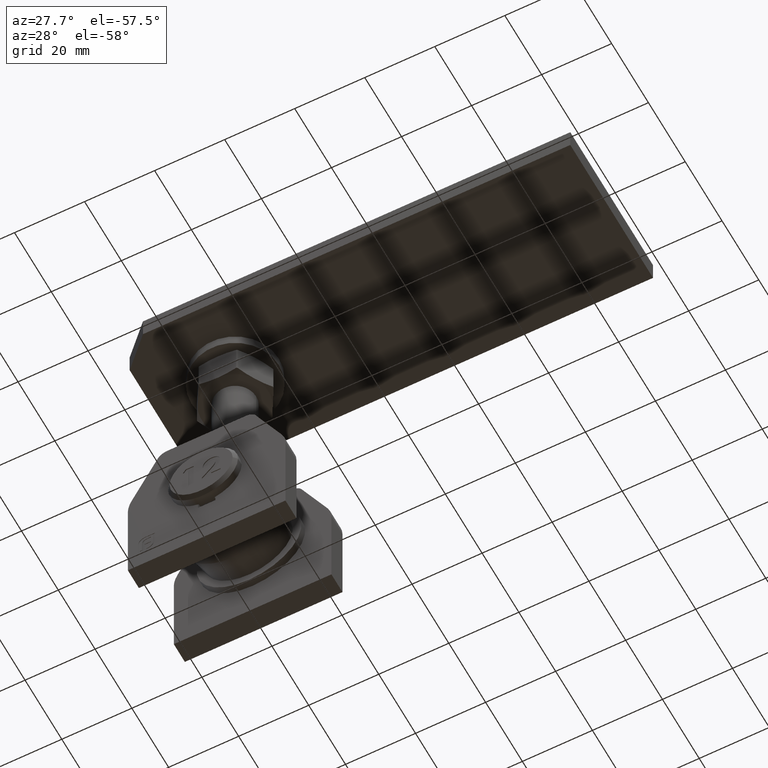
[diagram: clean part render]
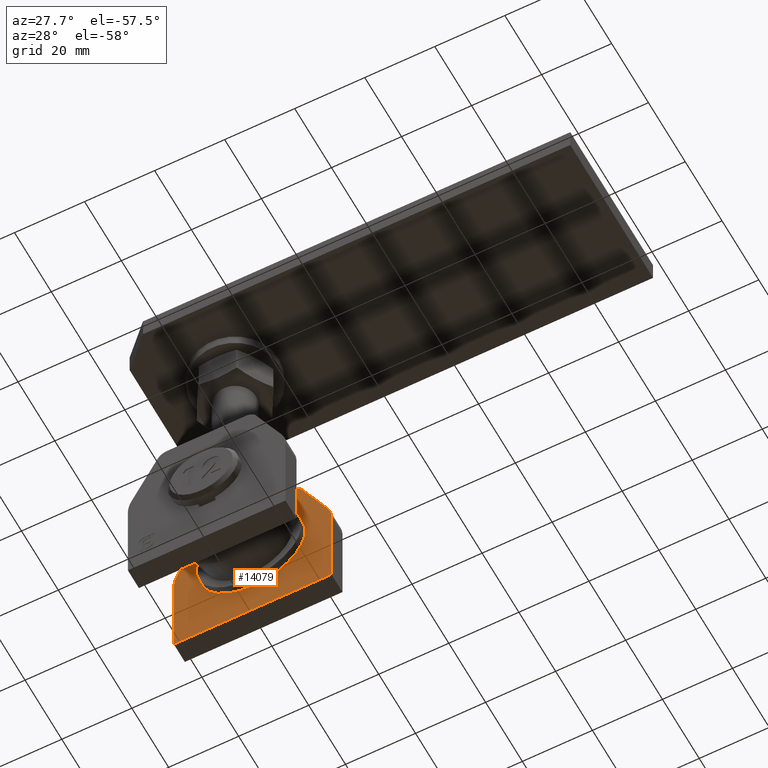
[diagram: same view with one face highlighted and labeled with its STEP entity id]
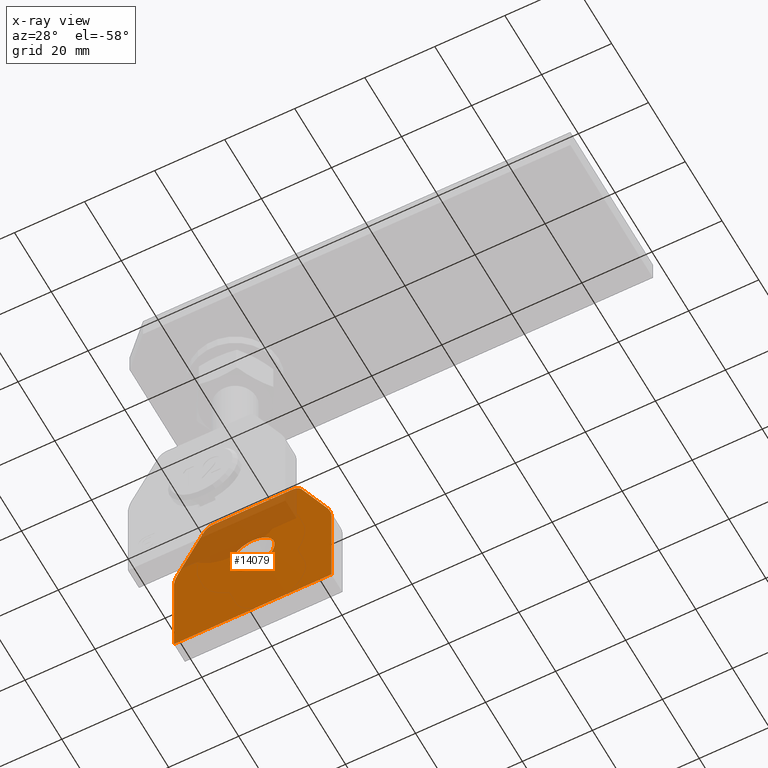
[diagram: x-ray of the same camera — body ghosted, the highlighted face saturated]
A machine part, auxiliary view. The second image highlights one B-rep face of the part: STEP entity #14079.
The next image is the same camera in x-ray: the body ghosted, the highlighted face saturated — about 25% of this face is hidden behind the body in this view.
In plain terms, the highlighted planar face has unit normal (0, 1, 0).
Its self-contained STEP definition (entity closure, byte-faithful):
#37 = EDGE_CURVE ( 'NONE', #18128, #4789, #12602, .T. ) ;
#988 = DIRECTION ( 'NONE',  ( 0.4582729057774034276, -0.000000000000000000, 0.8888115344831744036 ) ) ;
#1079 = CARTESIAN_POINT ( 'NONE',  ( -13.93143460344951023, -3.000000000000000888, 22.37481871733221439 ) ) ;
#1119 = CARTESIAN_POINT ( 'NONE',  ( 11.26500000000000767, -3.000000000000000888, 23.99999999999999645 ) ) ;
#1146 = CARTESIAN_POINT ( 'NONE',  ( -22.50000000000000000, -3.000000000000000888, -24.00000000000000000 ) ) ;
#1217 = DIRECTION ( 'NONE',  ( -1.000000000000000000, -0.000000000000000000, 1.541976423090495387E-16 ) ) ;
#1859 = ORIENTED_EDGE ( 'NONE', *, *, #15614, .F. ) ;
#1942 = DIRECTION ( 'NONE',  ( 0.000000000000000000, 1.000000000000000000, 0.000000000000000000 ) ) ;
#2423 = ORIENTED_EDGE ( 'NONE', *, *, #3558, .F. ) ;
#3015 = CARTESIAN_POINT ( 'NONE',  ( 22.50000000000000000, -3.000000000000000888, -24.00000000000000711 ) ) ;
#3144 = EDGE_CURVE ( 'NONE', #12515, #7146, #4798, .T. ) ;
#3264 = AXIS2_PLACEMENT_3D ( 'NONE', #8609, #10545, #6896 ) ;
#3558 = EDGE_CURVE ( 'NONE', #8816, #18128, #12231, .T. ) ;
#3794 = EDGE_CURVE ( 'NONE', #7146, #17740, #7700, .T. ) ;
#3817 = DIRECTION ( 'NONE',  ( 0.4582729057774031500, -0.000000000000000000, -0.8888115344831746256 ) ) ;
#3953 = EDGE_CURVE ( 'NONE', #4495, #17905, #4007, .T. ) ;
#4007 = LINE ( 'NONE', #15336, #21545 ) ;
#4471 = CARTESIAN_POINT ( 'NONE',  ( 12.50000000000000355, -3.000000000000000888, 3.329999999999991633 ) ) ;
#4495 = VERTEX_POINT ( 'NONE', #12261 ) ;
#4525 = DIRECTION ( 'NONE',  ( 0.000000000000000000, 1.000000000000000000, -0.000000000000000000 ) ) ;
#4674 = AXIS2_PLACEMENT_3D ( 'NONE', #6146, #4525, #7914 ) ;
#4789 = VERTEX_POINT ( 'NONE', #18854 ) ;
#4798 = LINE ( 'NONE', #7292, #18902 ) ;
#4892 = CARTESIAN_POINT ( 'NONE',  ( 3.469446951953614189E-15, -3.000000000000000888, 2.050000000000001155 ) ) ;
#5143 = EDGE_CURVE ( 'NONE', #17905, #8816, #9005, .T. ) ;
#5196 = CARTESIAN_POINT ( 'NONE',  ( -21.38811534483173915, -3.000000000000000888, 7.912729057774027019 ) ) ;
#5537 = VECTOR ( 'NONE', #1217, 1000.000000000000000 ) ;
#5740 = DIRECTION ( 'NONE',  ( 0.000000000000000000, 0.000000000000000000, 1.000000000000000000 ) ) ;
#6051 = LINE ( 'NONE', #16544, #14552 ) ;
#6103 = VECTOR ( 'NONE', #3817, 1000.000000000000114 ) ;
#6146 = CARTESIAN_POINT ( 'NONE',  ( -12.49999999999999289, -3.000000000000000888, 3.329999999999994742 ) ) ;
#6465 = DIRECTION ( 'NONE',  ( 0.000000000000000000, 1.000000000000000000, -0.000000000000000000 ) ) ;
#6705 = EDGE_CURVE ( 'NONE', #17740, #16647, #6051, .T. ) ;
#6767 = EDGE_CURVE ( 'NONE', #12931, #12515, #9744, .T. ) ;
#6896 = DIRECTION ( 'NONE',  ( 0.000000000000000000, 0.000000000000000000, 1.000000000000000000 ) ) ;
#7146 = VERTEX_POINT ( 'NONE', #12875 ) ;
#7292 = CARTESIAN_POINT ( 'NONE',  ( -22.50000000000000000, -3.000000000000000888, 3.329999999999996074 ) ) ;
#7700 = CIRCLE ( 'NONE', #4674, 10.00000000000000178 ) ;
#7914 = DIRECTION ( 'NONE',  ( 0.000000000000000000, 0.000000000000000000, -1.000000000000000000 ) ) ;
#8363 = AXIS2_PLACEMENT_3D ( 'NONE', #4471, #21480, #5740 ) ;
#8510 = EDGE_LOOP ( 'NONE', ( #18577 ) ) ;
#8609 = CARTESIAN_POINT ( 'NONE',  ( 11.26500000000000767, -3.000000000000000888, 21.00000000000000355 ) ) ;
#8728 = PLANE ( 'NONE',  #17230 ) ;
#8806 = CARTESIAN_POINT ( 'NONE',  ( 12.50000000000000355, -3.000000000000000888, 3.329999999999991633 ) ) ;
#8816 = VERTEX_POINT ( 'NONE', #20548 ) ;
#9005 = CIRCLE ( 'NONE', #3264, 2.999999999999992450 ) ;
#9744 = LINE ( 'NONE', #1146, #5537 ) ;
#9821 = ORIENTED_EDGE ( 'NONE', *, *, #5143, .F. ) ;
#10025 = CARTESIAN_POINT ( 'NONE',  ( -11.26499999999999346, -3.000000000000000888, 21.00000000000000711 ) ) ;
#10051 = ORIENTED_EDGE ( 'NONE', *, *, #20705, .F. ) ;
#10355 = DIRECTION ( 'NONE',  ( 1.000000000000000000, -0.000000000000000000, -1.539923192167605077E-16 ) ) ;
#10545 = DIRECTION ( 'NONE',  ( 0.000000000000000000, 1.000000000000000000, 0.000000000000000000 ) ) ;
#11372 = CARTESIAN_POINT ( 'NONE',  ( 22.50000000000000000, -3.000000000000000888, -24.00000000000000711 ) ) ;
#11613 = EDGE_CURVE ( 'NONE', #12190, #12190, #11742, .T. ) ;
#11668 = DIRECTION ( 'NONE',  ( -2.538929346471726752E-16, -0.000000000000000000, -1.000000000000000000 ) ) ;
#11742 = CIRCLE ( 'NONE', #11755, 6.250000000000000000 ) ;
#11755 = AXIS2_PLACEMENT_3D ( 'NONE', #4892, #14909, #14980 ) ;
#12190 = VERTEX_POINT ( 'NONE', #15499 ) ;
#12231 = LINE ( 'NONE', #19192, #6103 ) ;
#12261 = CARTESIAN_POINT ( 'NONE',  ( -11.26499999999999346, -3.000000000000000888, 24.00000000000000000 ) ) ;
#12515 = VERTEX_POINT ( 'NONE', #18081 ) ;
#12602 = CIRCLE ( 'NONE', #8363, 9.999999999999998224 ) ;
#12628 = VECTOR ( 'NONE', #11668, 1000.000000000000000 ) ;
#12875 = CARTESIAN_POINT ( 'NONE',  ( -22.49999999999999645, -3.000000000000000888, 3.329999999999996518 ) ) ;
#12931 = VERTEX_POINT ( 'NONE', #11372 ) ;
#13720 = ORIENTED_EDGE ( 'NONE', *, *, #3144, .F. ) ;
#13943 = ORIENTED_EDGE ( 'NONE', *, *, #3953, .F. ) ;
#14079 = ADVANCED_FACE ( 'NONE', ( #16612, #21941 ), #8728, .F. ) ;
#14081 = ORIENTED_EDGE ( 'NONE', *, *, #6767, .F. ) ;
#14372 = AXIS2_PLACEMENT_3D ( 'NONE', #10025, #6465, #15088 ) ;
#14552 = VECTOR ( 'NONE', #988, 1000.000000000000114 ) ;
#14909 = DIRECTION ( 'NONE',  ( 0.000000000000000000, 1.000000000000000000, 0.000000000000000000 ) ) ;
#14980 = DIRECTION ( 'NONE',  ( 0.000000000000000000, 0.000000000000000000, 1.000000000000000000 ) ) ;
#15088 = DIRECTION ( 'NONE',  ( 0.000000000000000000, 0.000000000000000000, -1.000000000000000000 ) ) ;
#15336 = CARTESIAN_POINT ( 'NONE',  ( 11.26500000000000767, -3.000000000000000888, 23.99999999999999645 ) ) ;
#15499 = CARTESIAN_POINT ( 'NONE',  ( 3.469446951953614189E-15, -3.000000000000000888, 8.300000000000002487 ) ) ;
#15614 = EDGE_CURVE ( 'NONE', #16647, #4495, #17674, .T. ) ;
#16544 = CARTESIAN_POINT ( 'NONE',  ( -13.93143460344951201, -3.000000000000000888, 22.37481871733221439 ) ) ;
#16612 = FACE_OUTER_BOUND ( 'NONE', #17529, .T. ) ;
#16647 = VERTEX_POINT ( 'NONE', #1079 ) ;
#17230 = AXIS2_PLACEMENT_3D ( 'NONE', #8806, #1942, #20664 ) ;
#17254 = ORIENTED_EDGE ( 'NONE', *, *, #3794, .F. ) ;
#17529 = EDGE_LOOP ( 'NONE', ( #13720, #14081, #10051, #18550, #2423, #9821, #13943, #1859, #18648, #17254 ) ) ;
#17674 = CIRCLE ( 'NONE', #14372, 2.999999999999992450 ) ;
#17740 = VERTEX_POINT ( 'NONE', #5196 ) ;
#17905 = VERTEX_POINT ( 'NONE', #1119 ) ;
#18081 = CARTESIAN_POINT ( 'NONE',  ( -22.50000000000000000, -3.000000000000000888, -24.00000000000000000 ) ) ;
#18128 = VERTEX_POINT ( 'NONE', #18979 ) ;
#18244 = LINE ( 'NONE', #3015, #12628 ) ;
#18550 = ORIENTED_EDGE ( 'NONE', *, *, #37, .F. ) ;
#18577 = ORIENTED_EDGE ( 'NONE', *, *, #11613, .T. ) ;
#18648 = ORIENTED_EDGE ( 'NONE', *, *, #6705, .F. ) ;
#18854 = CARTESIAN_POINT ( 'NONE',  ( 22.50000000000000711, -3.000000000000000888, 3.329999999999990301 ) ) ;
#18902 = VECTOR ( 'NONE', #21127, 1000.000000000000000 ) ;
#18979 = CARTESIAN_POINT ( 'NONE',  ( 21.38811534483174626, -3.000000000000000888, 7.912729057774021690 ) ) ;
#19192 = CARTESIAN_POINT ( 'NONE',  ( 21.38811534483174626, -3.000000000000000888, 7.912729057774021690 ) ) ;
#20548 = CARTESIAN_POINT ( 'NONE',  ( 13.93143460344952622, -3.000000000000000888, 22.37481871733221084 ) ) ;
#20664 = DIRECTION ( 'NONE',  ( 0.000000000000000000, -0.000000000000000000, 1.000000000000000000 ) ) ;
#20705 = EDGE_CURVE ( 'NONE', #4789, #12931, #18244, .T. ) ;
#21127 = DIRECTION ( 'NONE',  ( -0.000000000000000000, -0.000000000000000000, 1.000000000000000000 ) ) ;
#21480 = DIRECTION ( 'NONE',  ( 0.000000000000000000, 1.000000000000000000, 0.000000000000000000 ) ) ;
#21545 = VECTOR ( 'NONE', #10355, 1000.000000000000000 ) ;
#21941 = FACE_BOUND ( 'NONE', #8510, .T. ) ;